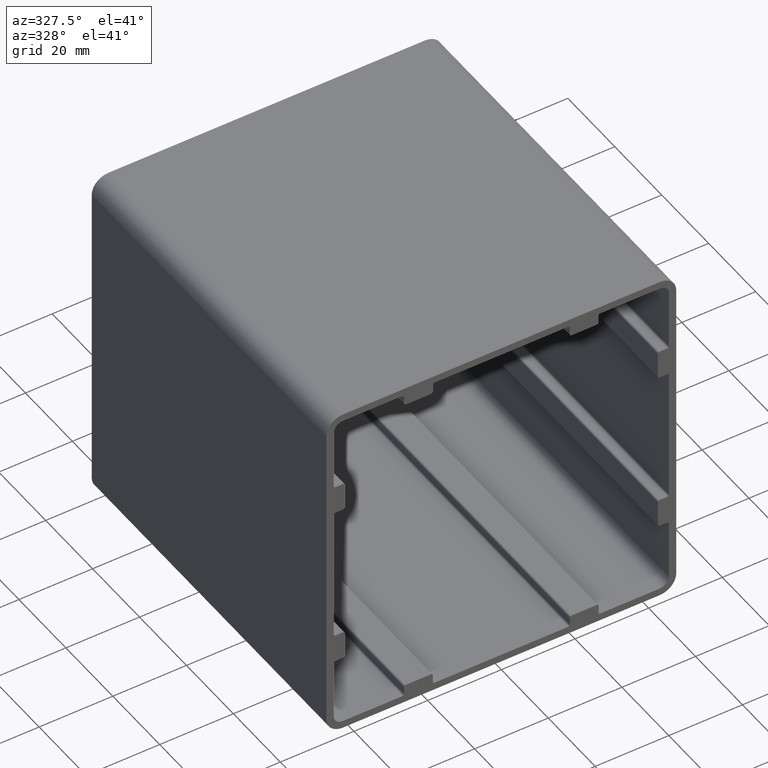
[diagram: clean part render]
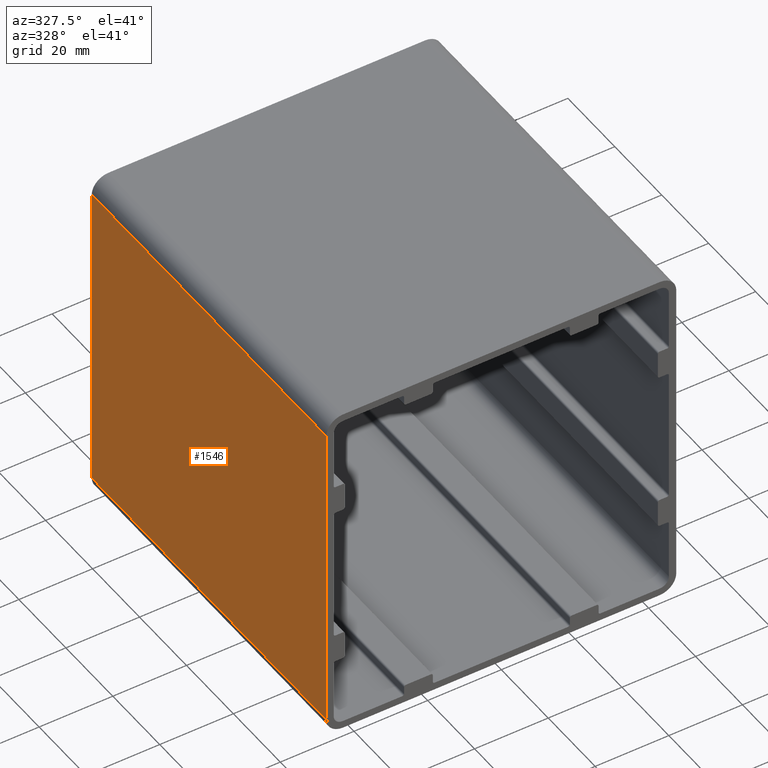
[diagram: same view with one face highlighted and labeled with its STEP entity id]
A machine part, auxiliary view. The second image highlights one B-rep face of the part: STEP entity #1546.
In plain terms, the highlighted planar face has unit normal (-1, 0, 0).
Its self-contained STEP definition (entity closure, byte-faithful):
#17=PLANE('',#1650);
#60=FACE_OUTER_BOUND('',#142,.T.);
#142=EDGE_LOOP('',(#1029,#1030,#1031,#1032));
#226=LINE('',#2304,#386);
#227=LINE('',#2307,#387);
#228=LINE('',#2309,#388);
#229=LINE('',#2310,#389);
#386=VECTOR('',#1818,10.);
#387=VECTOR('',#1821,10.);
#388=VECTOR('',#1822,10.);
#389=VECTOR('',#1823,10.);
#625=VERTEX_POINT('',#2297);
#628=VERTEX_POINT('',#2302);
#629=VERTEX_POINT('',#2306);
#630=VERTEX_POINT('',#2308);
#788=EDGE_CURVE('',#628,#625,#226,.T.);
#789=EDGE_CURVE('',#628,#629,#227,.T.);
#790=EDGE_CURVE('',#630,#629,#228,.T.);
#791=EDGE_CURVE('',#625,#630,#229,.T.);
#1029=ORIENTED_EDGE('',*,*,#788,.F.);
#1030=ORIENTED_EDGE('',*,*,#789,.T.);
#1031=ORIENTED_EDGE('',*,*,#790,.F.);
#1032=ORIENTED_EDGE('',*,*,#791,.F.);
#1546=ADVANCED_FACE('',(#60),#17,.T.);
#1650=AXIS2_PLACEMENT_3D('',#2305,#1819,#1820);
#1818=DIRECTION('',(0.,1.,0.));
#1819=DIRECTION('center_axis',(-1.,0.,0.));
#1820=DIRECTION('ref_axis',(0.,0.,1.));
#1821=DIRECTION('',(0.,0.,1.));
#1822=DIRECTION('',(0.,-1.,0.));
#1823=DIRECTION('',(0.,0.,1.));
#2297=CARTESIAN_POINT('',(-47.5,100.,-43.));
#2302=CARTESIAN_POINT('',(-47.5,0.,-43.));
#2304=CARTESIAN_POINT('',(-47.5,0.,-43.));
#2305=CARTESIAN_POINT('Origin',(-47.5,0.,-47.5));
#2306=CARTESIAN_POINT('',(-47.5,0.,43.));
#2307=CARTESIAN_POINT('',(-47.5,0.,-47.5));
#2308=CARTESIAN_POINT('',(-47.5,100.,43.));
#2309=CARTESIAN_POINT('',(-47.5,0.,43.));
#2310=CARTESIAN_POINT('',(-47.5,100.,-47.5));